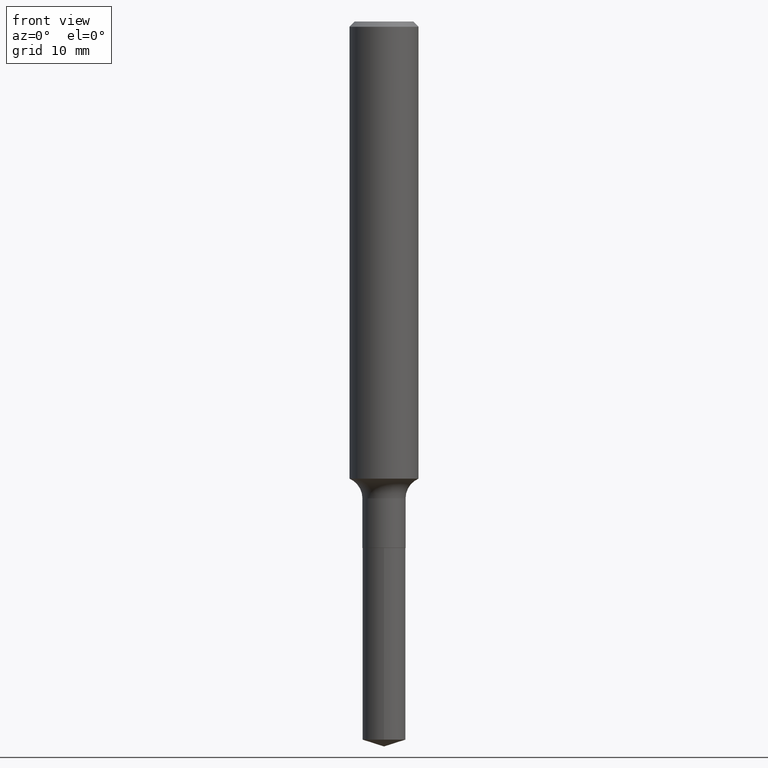
[diagram: clean part render]
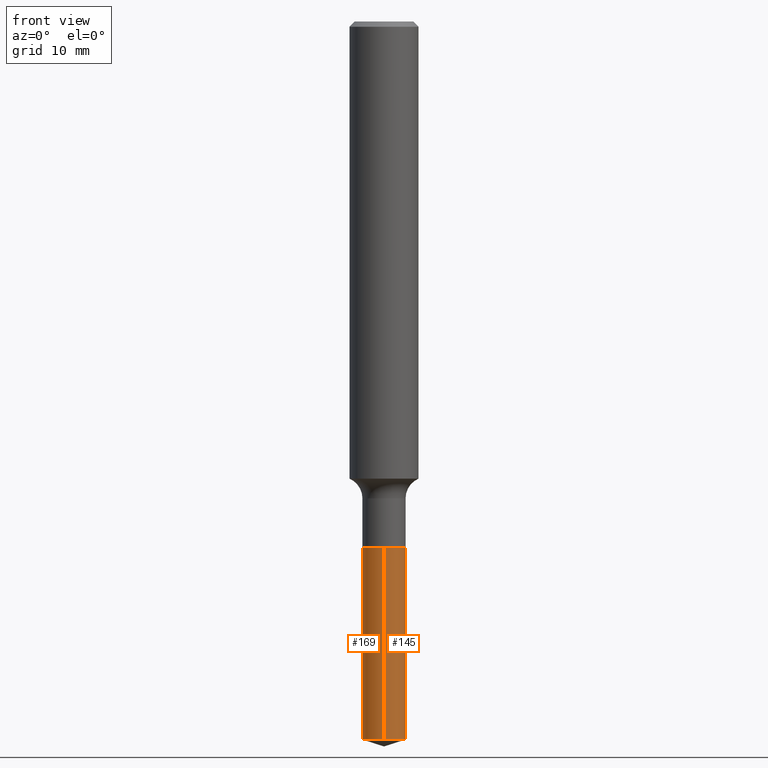
[diagram: same view with one multi-face feature highlighted, each face labeled with its STEP entity id]
A machine part, front view. The highlighted faces form ONE feature: a constant-radius fillet chain: 2 tangent blend faces with common blend radius 1.9837 mm. The faces share edges in the B-rep.
Their STEP definitions:
[1] entity #145 (Cylinder):
#1 = EDGE_CURVE ( 'NONE', #280, #10, #103, .T. ) ;
#10 = VERTEX_POINT ( 'NONE', #305 ) ;
#19 = ORIENTED_EDGE ( 'NONE', *, *, #490, .F. ) ;
#28 = CARTESIAN_POINT ( 'NONE',  ( 6.359084130436223766E-29, -9.079236141651479808E-15, -2.600375164588550891 ) ) ;
#43 = VECTOR ( 'NONE', #273, 39.37007874015748143 ) ;
#46 = CARTESIAN_POINT ( 'NONE',  ( 5.549338766287017680E-16, 0.07809999999999334142, -1.906200000000000339 ) ) ;
#59 = ORIENTED_EDGE ( 'NONE', *, *, #61, .T. ) ;
#61 = EDGE_CURVE ( 'NONE', #280, #444, #362, .T. ) ;
#71 = LINE ( 'NONE', #339, #43 ) ;
#78 = CIRCLE ( 'NONE', #245, 0.07810000000000000275 ) ;
#81 = EDGE_CURVE ( 'NONE', #444, #171, #71, .T. ) ;
#82 = CYLINDRICAL_SURFACE ( 'NONE', #149, 0.07810000000000000275 ) ;
#103 = LINE ( 'NONE', #467, #287 ) ;
#106 = DIRECTION ( 'NONE',  ( -6.982962677686265133E-15, -1.000000000000000000, 3.497884755011860410E-15 ) ) ;
#121 = EDGE_LOOP ( 'NONE', ( #59, #372, #19, #294 ) ) ;
#145 = ADVANCED_FACE ( 'NONE', ( #154 ), #82, .T. ) ;
#148 = DIRECTION ( 'NONE',  ( -2.445393581737068689E-29, 3.491589064534288642E-15, 1.000000000000000000 ) ) ;
#149 = AXIS2_PLACEMENT_3D ( 'NONE', #477, #148, #333 ) ;
#154 = FACE_OUTER_BOUND ( 'NONE', #121, .T. ) ;
#161 = AXIS2_PLACEMENT_3D ( 'NONE', #28, #307, #418 ) ;
#171 = VERTEX_POINT ( 'NONE', #46 ) ;
#183 = DIRECTION ( 'NONE',  ( -2.445393581737068689E-29, 3.491589064534288642E-15, 1.000000000000000000 ) ) ;
#245 = AXIS2_PLACEMENT_3D ( 'NONE', #445, #183, #106 ) ;
#273 = DIRECTION ( 'NONE',  ( -2.445393581737068689E-29, 3.491589064534288248E-15, 1.000000000000000000 ) ) ;
#280 = VERTEX_POINT ( 'NONE', #451 ) ;
#287 = VECTOR ( 'NONE', #474, 39.37007874015748143 ) ;
#294 = ORIENTED_EDGE ( 'NONE', *, *, #1, .F. ) ;
#305 = CARTESIAN_POINT ( 'NONE',  ( -5.453693851272506964E-16, -0.07810000000000665021, -1.906199999999999672 ) ) ;
#307 = DIRECTION ( 'NONE',  ( -2.445393581737068689E-29, 3.491589064534288642E-15, 1.000000000000000000 ) ) ;
#333 = DIRECTION ( 'NONE',  ( -6.982962677686265133E-15, -1.000000000000000000, 3.497884755011860410E-15 ) ) ;
#338 = CARTESIAN_POINT ( 'NONE',  ( 5.549338766287017680E-16, 0.07809999999999091280, -2.600375164588551780 ) ) ;
#339 = CARTESIAN_POINT ( 'NONE',  ( 5.549338766286847089E-16, 0.07809999999999334142, -1.906200000000000339 ) ) ;
#362 = CIRCLE ( 'NONE', #161, 0.07810000000000000275 ) ;
#372 = ORIENTED_EDGE ( 'NONE', *, *, #81, .T. ) ;
#418 = DIRECTION ( 'NONE',  ( -6.982962677686265133E-15, -1.000000000000000000, 0.000000000000000000 ) ) ;
#444 = VERTEX_POINT ( 'NONE', #338 ) ;
#445 = CARTESIAN_POINT ( 'NONE',  ( 4.661552638350107806E-29, -6.655461728102803685E-15, -1.906200000000000117 ) ) ;
#451 = CARTESIAN_POINT ( 'NONE',  ( -5.453693851272338345E-16, -0.07810000000000907883, -2.600375164588550447 ) ) ;
#467 = CARTESIAN_POINT ( 'NONE',  ( -5.453693851272506964E-16, -0.07810000000000665021, -1.906199999999999672 ) ) ;
#474 = DIRECTION ( 'NONE',  ( -2.445393581737068689E-29, 3.491589064534288248E-15, 1.000000000000000000 ) ) ;
#477 = CARTESIAN_POINT ( 'NONE',  ( 4.661552638350107806E-29, -6.655461728102803685E-15, -1.906200000000000117 ) ) ;
#490 = EDGE_CURVE ( 'NONE', #10, #171, #78, .T. ) ;
[2] entity #169 (Cylinder):
#1 = EDGE_CURVE ( 'NONE', #280, #10, #103, .T. ) ;
#10 = VERTEX_POINT ( 'NONE', #305 ) ;
#24 = CARTESIAN_POINT ( 'NONE',  ( 4.661552638350107806E-29, -6.655461728102803685E-15, -1.906200000000000117 ) ) ;
#43 = VECTOR ( 'NONE', #273, 39.37007874015748143 ) ;
#46 = CARTESIAN_POINT ( 'NONE',  ( 5.549338766287017680E-16, 0.07809999999999334142, -1.906200000000000339 ) ) ;
#71 = LINE ( 'NONE', #339, #43 ) ;
#81 = EDGE_CURVE ( 'NONE', #444, #171, #71, .T. ) ;
#92 = DIRECTION ( 'NONE',  ( -6.982962677686265133E-15, -1.000000000000000000, 3.497884755011860410E-15 ) ) ;
#103 = LINE ( 'NONE', #467, #287 ) ;
#123 = AXIS2_PLACEMENT_3D ( 'NONE', #24, #180, #265 ) ;
#133 = DIRECTION ( 'NONE',  ( -2.445393581737068689E-29, 3.491589064534288642E-15, 1.000000000000000000 ) ) ;
#162 = CIRCLE ( 'NONE', #123, 0.07810000000000000275 ) ;
#169 = ADVANCED_FACE ( 'NONE', ( #206 ), #286, .T. ) ;
#171 = VERTEX_POINT ( 'NONE', #46 ) ;
#179 = CARTESIAN_POINT ( 'NONE',  ( 6.359084130436223766E-29, -9.079236141651479808E-15, -2.600375164588550891 ) ) ;
#180 = DIRECTION ( 'NONE',  ( -2.445393581737068689E-29, 3.491589064534288642E-15, 1.000000000000000000 ) ) ;
#186 = DIRECTION ( 'NONE',  ( -2.445393581737068689E-29, 3.491589064534288642E-15, 1.000000000000000000 ) ) ;
#206 = FACE_OUTER_BOUND ( 'NONE', #434, .T. ) ;
#216 = DIRECTION ( 'NONE',  ( -6.982962677686265133E-15, -1.000000000000000000, 0.000000000000000000 ) ) ;
#240 = ORIENTED_EDGE ( 'NONE', *, *, #1, .T. ) ;
#247 = ORIENTED_EDGE ( 'NONE', *, *, #433, .F. ) ;
#265 = DIRECTION ( 'NONE',  ( -6.982962677686265133E-15, -1.000000000000000000, 3.497884755011860410E-15 ) ) ;
#273 = DIRECTION ( 'NONE',  ( -2.445393581737068689E-29, 3.491589064534288248E-15, 1.000000000000000000 ) ) ;
#280 = VERTEX_POINT ( 'NONE', #451 ) ;
#286 = CYLINDRICAL_SURFACE ( 'NONE', #437, 0.07810000000000000275 ) ;
#287 = VECTOR ( 'NONE', #474, 39.37007874015748143 ) ;
#305 = CARTESIAN_POINT ( 'NONE',  ( -5.453693851272506964E-16, -0.07810000000000665021, -1.906199999999999672 ) ) ;
#338 = CARTESIAN_POINT ( 'NONE',  ( 5.549338766287017680E-16, 0.07809999999999091280, -2.600375164588551780 ) ) ;
#339 = CARTESIAN_POINT ( 'NONE',  ( 5.549338766286847089E-16, 0.07809999999999334142, -1.906200000000000339 ) ) ;
#348 = AXIS2_PLACEMENT_3D ( 'NONE', #179, #186, #216 ) ;
#360 = CARTESIAN_POINT ( 'NONE',  ( 4.661552638350107806E-29, -6.655461728102803685E-15, -1.906200000000000117 ) ) ;
#396 = ORIENTED_EDGE ( 'NONE', *, *, #81, .F. ) ;
#424 = ORIENTED_EDGE ( 'NONE', *, *, #475, .T. ) ;
#433 = EDGE_CURVE ( 'NONE', #171, #10, #162, .T. ) ;
#434 = EDGE_LOOP ( 'NONE', ( #396, #424, #240, #247 ) ) ;
#437 = AXIS2_PLACEMENT_3D ( 'NONE', #360, #133, #92 ) ;
#444 = VERTEX_POINT ( 'NONE', #338 ) ;
#448 = CIRCLE ( 'NONE', #348, 0.07810000000000000275 ) ;
#451 = CARTESIAN_POINT ( 'NONE',  ( -5.453693851272338345E-16, -0.07810000000000907883, -2.600375164588550447 ) ) ;
#467 = CARTESIAN_POINT ( 'NONE',  ( -5.453693851272506964E-16, -0.07810000000000665021, -1.906199999999999672 ) ) ;
#474 = DIRECTION ( 'NONE',  ( -2.445393581737068689E-29, 3.491589064534288248E-15, 1.000000000000000000 ) ) ;
#475 = EDGE_CURVE ( 'NONE', #444, #280, #448, .T. ) ;